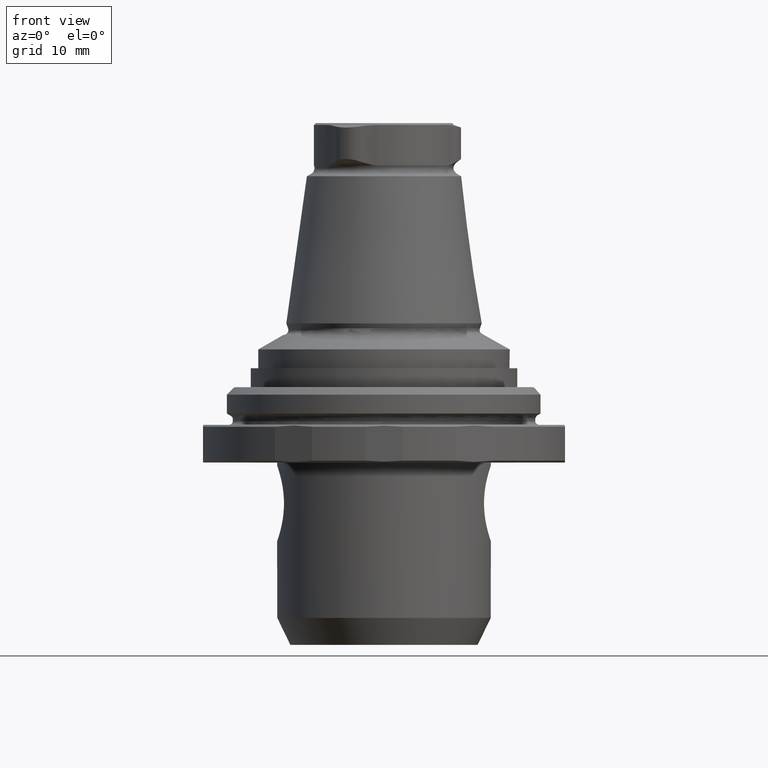
[diagram: clean part render]
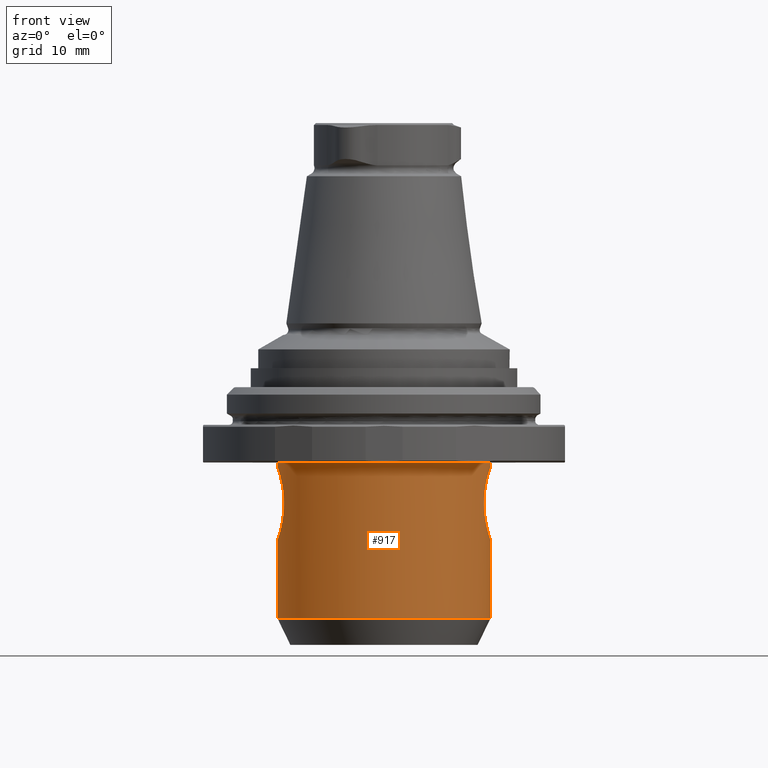
[diagram: same view with one face highlighted and labeled with its STEP entity id]
A machine part, front view. The second image highlights one B-rep face of the part: STEP entity #917.
In plain terms, the highlighted cylindrical surface (bore or boss wall) has radius 17 mm, axis along (0, 0, -1).
Its self-contained STEP definition (entity closure, byte-faithful):
#116=CIRCLE('',#999,17.);
#117=CIRCLE('',#1000,17.);
#173=ORIENTED_EDGE('',*,*,#427,.F.);
#174=ORIENTED_EDGE('',*,*,#428,.T.);
#175=ORIENTED_EDGE('',*,*,#429,.F.);
#176=ORIENTED_EDGE('',*,*,#430,.T.);
#427=EDGE_CURVE('',#554,#554,#647,.T.);
#428=EDGE_CURVE('',#555,#555,#116,.T.);
#429=EDGE_CURVE('',#556,#556,#117,.T.);
#430=EDGE_CURVE('',#557,#557,#648,.T.);
#554=VERTEX_POINT('',#1424);
#555=VERTEX_POINT('',#1426);
#556=VERTEX_POINT('',#1428);
#557=VERTEX_POINT('',#1448);
#647=B_SPLINE_CURVE_WITH_KNOTS('',3,(#1405,#1406,#1407,#1408,#1409,#1410,
#1411,#1412,#1413,#1414,#1415,#1416,#1417,#1418,#1419,#1420,#1421,#1422,
#1423),.UNSPECIFIED.,.T.,.F.,(1,1,1,1,1,1,1,1,1,1,1,1,1,1,1,1,1,1,1,1,1,
1,1),(-0.00709130199013503,-0.00472753466009002,-0.00236376733004501,2.46689932664836E-19,
0.00236376733004501,0.00472753466009002,0.00709130199013503,0.00945506932018004,
0.011818836650225,0.0141826039802701,0.0165463713103151,0.0189101386403601,
0.0212739059704051,0.0236376733004501,0.0260014406304951,0.0283652079605401,
0.0307289752905851,0.0330927426206301,0.0354565099506751,0.0378202772807202,
0.0401840446107652,0.0425478119408102,0.0449115792708552),.UNSPECIFIED.);
#648=B_SPLINE_CURVE_WITH_KNOTS('',3,(#1429,#1430,#1431,#1432,#1433,#1434,
#1435,#1436,#1437,#1438,#1439,#1440,#1441,#1442,#1443,#1444,#1445,#1446,
#1447),.UNSPECIFIED.,.T.,.F.,(1,1,1,1,1,1,1,1,1,1,1,1,1,1,1,1,1,1,1,1,1,
1,1),(-0.00709359062768361,-0.00472906041845574,-0.00236453020922787,1.8949567822302E-19,
0.00236453020922787,0.00472906041845574,0.00709359062768361,0.00945812083691148,
0.0118226510461393,0.0141871812553672,0.0165517114645951,0.018916241673823,
0.0212807718830508,0.0236453020922787,0.0260098323015066,0.0283743625107344,
0.0307388927199623,0.0331034229291902,0.0354679531384181,0.0378324833476459,
0.0401970135568738,0.0425615437661017,0.0449260739753295),.UNSPECIFIED.);
#689=EDGE_LOOP('',(#173));
#690=EDGE_LOOP('',(#174));
#691=EDGE_LOOP('',(#175));
#692=EDGE_LOOP('',(#176));
#789=FACE_BOUND('',#689,.T.);
#790=FACE_BOUND('',#690,.T.);
#791=FACE_BOUND('',#691,.T.);
#792=FACE_BOUND('',#692,.T.);
#889=CYLINDRICAL_SURFACE('',#998,17.);
#917=ADVANCED_FACE('',(#789,#790,#791,#792),#889,.T.);
#998=AXIS2_PLACEMENT_3D('',#1404,#1125,#1126);
#999=AXIS2_PLACEMENT_3D('',#1425,#1127,#1128);
#1000=AXIS2_PLACEMENT_3D('',#1427,#1129,#1130);
#1125=DIRECTION('',(0.,0.,-1.));
#1126=DIRECTION('',(0.,1.,0.));
#1127=DIRECTION('',(1.27319154200133E-16,-7.79579225983867E-33,-1.));
#1128=DIRECTION('',(-1.,0.,-1.27319154200133E-16));
#1129=DIRECTION('',(0.,0.,-1.));
#1130=DIRECTION('',(0.,1.,0.));
#1404=CARTESIAN_POINT('',(0.,0.,-47.9959292143521));
#1405=CARTESIAN_POINT('',(-16.8832929570118,2.37380783660227,-19.1800878484436));
#1406=CARTESIAN_POINT('',(-17.058393789588,0.000508446711942586,-19.6600571505061));
#1407=CARTESIAN_POINT('',(-16.8831318846361,-2.37584162345004,-19.1796835495317));
#1408=CARTESIAN_POINT('',(-16.4636319189376,-4.35272812005483,-17.8480461771511));
#1409=CARTESIAN_POINT('',(-16.0321697213951,-5.67931790690414,-15.8737438656125));
#1410=CARTESIAN_POINT('',(-15.8431005947194,-6.15967717311533,-13.505753459306));
#1411=CARTESIAN_POINT('',(-16.0312736497879,-5.68196431689268,-11.1288162938729));
#1412=CARTESIAN_POINT('',(-16.4646361214891,-4.34962916428013,-9.14818400942129));
#1413=CARTESIAN_POINT('',(-16.8833841034554,-2.37250547972392,-7.81974619751368));
#1414=CARTESIAN_POINT('',(-17.0581723938013,-0.00286131769878882,-7.34054493503206));
#1415=CARTESIAN_POINT('',(-16.8839254340414,2.37049679888471,-7.81807657636988));
#1416=CARTESIAN_POINT('',(-16.4640492354726,4.3518583628053,-9.15006292250521));
#1417=CARTESIAN_POINT('',(-16.0315176925378,5.68111761474334,-11.1290317562849));
#1418=CARTESIAN_POINT('',(-15.8431327877959,6.15961190028352,-13.5000743197506));
#1419=CARTESIAN_POINT('',(-16.0317935102617,5.68043470336843,-15.873082245296));
#1420=CARTESIAN_POINT('',(-16.4642113598415,4.35091826860849,-17.8501505921759));
#1421=CARTESIAN_POINT('',(-16.8832929570118,2.37380783660227,-19.1800878484436));
#1422=CARTESIAN_POINT('',(-17.058393789588,0.000508446711942586,-19.6600571505061));
#1423=CARTESIAN_POINT('',(-16.8831318846361,-2.37584162345004,-19.1796835495317));
#1424=CARTESIAN_POINT('',(-17.,2.54135239200769E-16,-19.5));
#1425=CARTESIAN_POINT('',(0.,0.,-7.00000000000001));
#1426=CARTESIAN_POINT('',(-17.,0.,-7.00000000000002));
#1427=CARTESIAN_POINT('',(0.,0.,-31.7109861589809));
#1428=CARTESIAN_POINT('',(0.,17.,-31.7109861589809));
#1429=CARTESIAN_POINT('',(16.8830467913033,2.37440035371411,-19.1787537965792));
#1430=CARTESIAN_POINT('',(17.058510669723,0.000496440944389783,-19.6661905899899));
#1431=CARTESIAN_POINT('',(16.8829105298045,-2.37638611749168,-19.1784274382188));
#1432=CARTESIAN_POINT('',(16.4648856196441,-4.3469991929367,-17.8356680441569));
#1433=CARTESIAN_POINT('',(16.0355034711858,-5.67014705964881,-15.8590540569191));
#1434=CARTESIAN_POINT('',(15.8432287916276,-6.15934902970659,-13.4937006295997));
#1435=CARTESIAN_POINT('',(16.0275871105998,-5.69202358018492,-11.1136472855037));
#1436=CARTESIAN_POINT('',(16.4629148407089,-4.35708843238731,-9.13195759078322));
#1437=CARTESIAN_POINT('',(16.8834990991577,-2.37315298646518,-7.81187940265973));
#1438=CARTESIAN_POINT('',(17.058155522534,-0.0021400105771426,-7.33887355445228));
#1439=CARTESIAN_POINT('',(16.8838783489643,2.37200760037221,-7.81068407771533));
#1440=CARTESIAN_POINT('',(16.4623064569803,4.3593196447749,-9.13400573334786));
#1441=CARTESIAN_POINT('',(16.0278905395786,5.69102602674467,-11.1133968969042));
#1442=CARTESIAN_POINT('',(15.8431924631087,6.15945973215447,-13.4886723591216));
#1443=CARTESIAN_POINT('',(16.0353106747531,5.67079374500995,-15.8595475086016));
#1444=CARTESIAN_POINT('',(16.4656423134266,4.34444944656946,-17.8383691649734));
#1445=CARTESIAN_POINT('',(16.8830467913033,2.37440035371411,-19.1787537965792));
#1446=CARTESIAN_POINT('',(17.058510669723,0.000496440944389783,-19.6661905899899));
#1447=CARTESIAN_POINT('',(16.8829105298045,-2.37638611749168,-19.1784274382188));
#1448=CARTESIAN_POINT('',(17.,1.95252547239308E-16,-19.5036572657929));